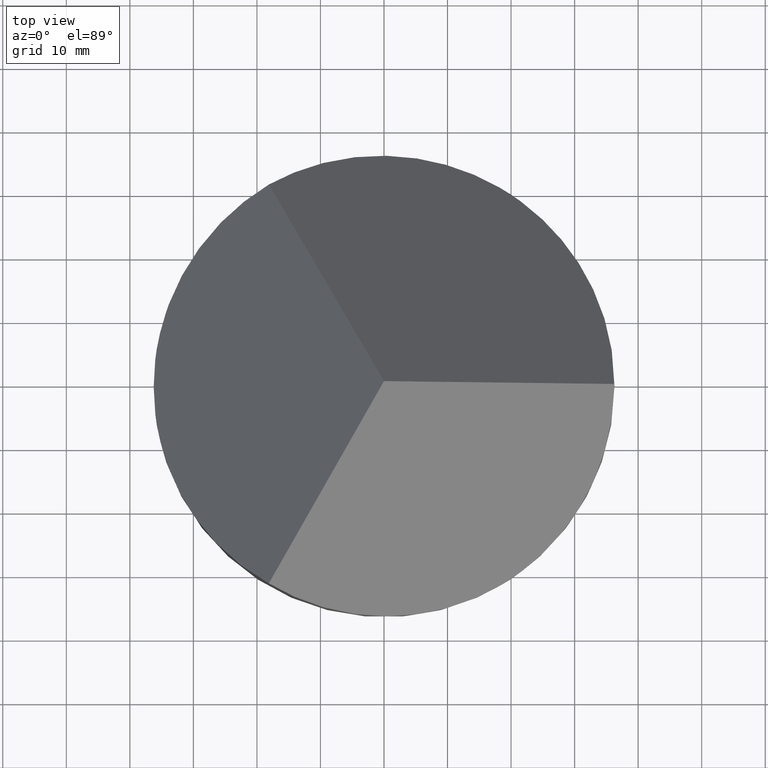
[diagram: clean part render]
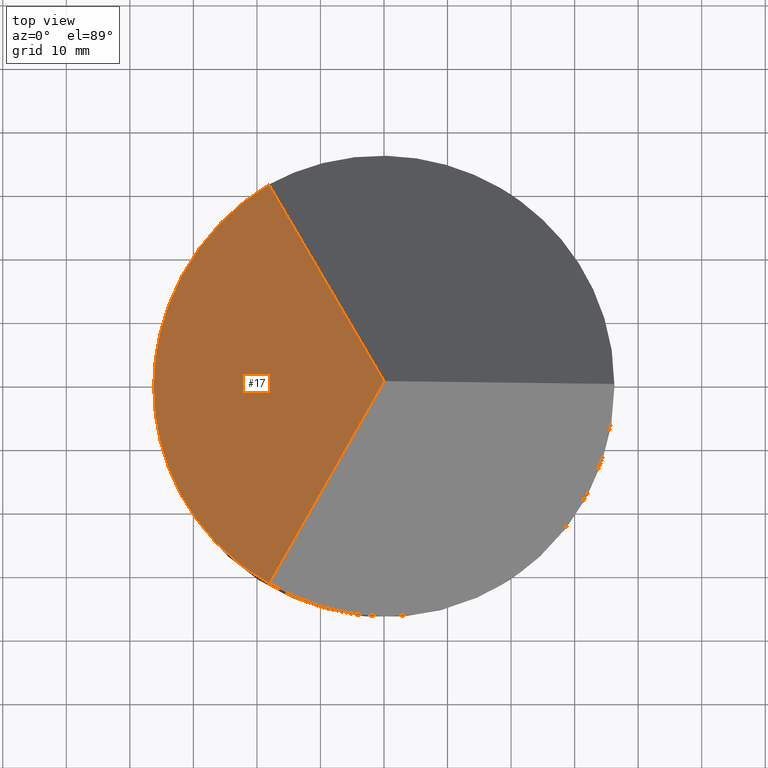
[diagram: same view with one face highlighted and labeled with its STEP entity id]
A machine part, top view. The second image highlights one B-rep face of the part: STEP entity #17.
In plain terms, the highlighted planar face has unit normal (0.8164, 0, -0.5774).
Its self-contained STEP definition (entity closure, byte-faithful):
#5 = VECTOR ( 'NONE', #206, 1000.000000000000100 ) ;
#12 = CARTESIAN_POINT ( 'NONE',  ( -29.61578955640706200, -24.75921044359292700, 10.47564734618864600 ) ) ;
#15 = DIRECTION ( 'NONE',  ( 0.8164400437365592100, 0.0000000000000000000, -0.5774302165486712200 ) ) ;
#17 = ADVANCED_FACE ( 'NONE', ( #175 ), #181, .F. ) ;
#24 = EDGE_CURVE ( 'NONE', #66, #159, #298, .T. ) ;
#37 = EDGE_CURVE ( 'NONE', #123, #79, #255, .T. ) ;
#47 = CARTESIAN_POINT ( 'NONE',  ( -29.61578955640706900, 24.75921044359291300, 10.47564734618863500 ) ) ;
#60 = EDGE_CURVE ( 'NONE', #66, #79, #250, .T. ) ;
#62 = CARTESIAN_POINT ( 'NONE',  ( -11.40424666751465600, -19.75273465018338500, 36.22530929077493800 ) ) ;
#66 = VERTEX_POINT ( 'NONE', #301 ) ;
#79 = VERTEX_POINT ( 'NONE', #82 ) ;
#82 = CARTESIAN_POINT ( 'NONE',  ( -3.469446951953614200E-015, -4.420505172018915700E-015, 52.35000000000000100 ) ) ;
#109 = CARTESIAN_POINT ( 'NONE',  ( -18.12500000000005000, 31.39342088718588600, 26.72270276368042400 ) ) ;
#123 = VERTEX_POINT ( 'NONE', #239 ) ;
#139 = CARTESIAN_POINT ( 'NONE',  ( -36.25000000000000000, 0.0000000000000000000, 1.095405527360988800 ) ) ;
#151 = DIRECTION ( 'NONE',  ( -0.5774302165486712200, 0.0000000000000000000, -0.8164400437365592100 ) ) ;
#152 = CARTESIAN_POINT ( 'NONE',  ( 11.40424666751465900, -19.75273465018337800, 68.47469070922507200 ) ) ;
#159 = VERTEX_POINT ( 'NONE', #139 ) ;
#167 = EDGE_LOOP ( 'NONE', ( #224, #300, #222, #276 ) ) ;
#175 = FACE_OUTER_BOUND ( 'NONE', #167, .T. ) ;
#181 = PLANE ( 'NONE',  #249 ) ;
#186 = CARTESIAN_POINT ( 'NONE',  ( -36.25000000000000000, 13.26842088718587900, 1.095405527360981500 ) ) ;
#205 = DIRECTION ( 'NONE',  ( 0.4082765531884057200, 0.7071557336614136000, 0.5772703218305811300 ) ) ;
#206 = DIRECTION ( 'NONE',  ( 0.4082765531884057200, -0.7071557336614134900, 0.5772703218305811300 ) ) ;
#221 = EDGE_CURVE ( 'NONE', #159, #123, #290, .T. ) ;
#222 = ORIENTED_EDGE ( 'NONE', *, *, #37, .F. ) ;
#224 = ORIENTED_EDGE ( 'NONE', *, *, #24, .F. ) ;
#239 = CARTESIAN_POINT ( 'NONE',  ( -18.12500000000005000, 31.39342088718588600, 26.72270276368042400 ) ) ;
#249 = AXIS2_PLACEMENT_3D ( 'NONE', #297, #15, #151 ) ;
#250 = LINE ( 'NONE', #62, #264 ) ;
#255 = LINE ( 'NONE', #152, #5 ) ;
#256 = CARTESIAN_POINT ( 'NONE',  ( -18.12500000000004300, -31.39342088718588600, 26.72270276368043100 ) ) ;
#258 = CARTESIAN_POINT ( 'NONE',  ( -36.25000000000000700, -13.26842088718588100, 1.095405527360982000 ) ) ;
#259 = CARTESIAN_POINT ( 'NONE',  ( -36.25000000000000000, 0.0000000000000000000, 1.095405527360988800 ) ) ;
#264 = VECTOR ( 'NONE', #205, 1000.000000000000100 ) ;
#276 = ORIENTED_EDGE ( 'NONE', *, *, #221, .F. ) ;
#290 =( BOUNDED_CURVE ( )  B_SPLINE_CURVE ( 3, ( #310, #186, #47, #109 ),
 .UNSPECIFIED., .F., .T. ) 
 B_SPLINE_CURVE_WITH_KNOTS ( ( 4, 4 ),
 ( 0.0000000000000000000, 1.047197551196596300 ),
 .UNSPECIFIED. ) 
 CURVE ( )  GEOMETRIC_REPRESENTATION_ITEM ( )  RATIONAL_B_SPLINE_CURVE ( ( 1.000000000000000000, 0.9106836025229593200, 0.9106836025229593200, 1.000000000000000000 ) ) 
 REPRESENTATION_ITEM ( '' )  );
#297 = CARTESIAN_POINT ( 'NONE',  ( 0.0000000000000000000, -39.50000000000000000, 52.35000000000000100 ) ) ;
#298 =( BOUNDED_CURVE ( )  B_SPLINE_CURVE ( 3, ( #256, #12, #258, #259 ),
 .UNSPECIFIED., .F., .F. ) 
 B_SPLINE_CURVE_WITH_KNOTS ( ( 4, 4 ),
 ( 5.235987755982989700, 6.283185307179586200 ),
 .UNSPECIFIED. ) 
 CURVE ( )  GEOMETRIC_REPRESENTATION_ITEM ( )  RATIONAL_B_SPLINE_CURVE ( ( 1.000000000000000000, 0.9106836025229592100, 0.9106836025229592100, 1.000000000000000000 ) ) 
 REPRESENTATION_ITEM ( '' )  );
#300 = ORIENTED_EDGE ( 'NONE', *, *, #60, .T. ) ;
#301 = CARTESIAN_POINT ( 'NONE',  ( -18.12500000000004300, -31.39342088718588600, 26.72270276368043100 ) ) ;
#310 = CARTESIAN_POINT ( 'NONE',  ( -36.25000000000000000, 0.0000000000000000000, 1.095405527360988800 ) ) ;